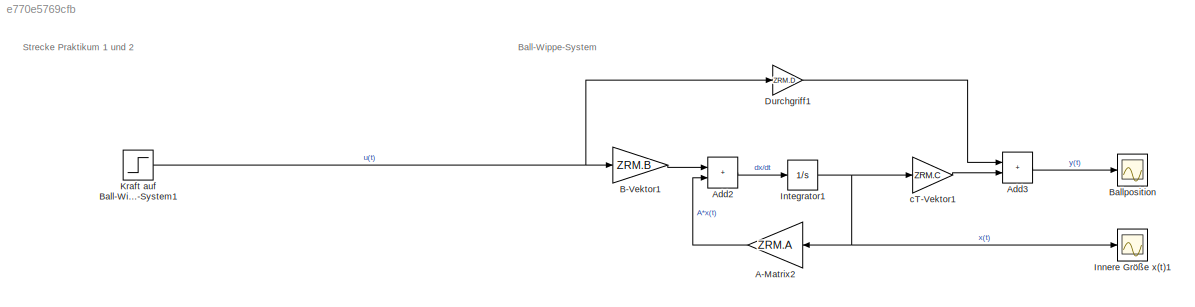
MODEL slx_e770e5769cfb
KIND model
CONFIG AbsTol = auto
CONFIG EnableMultiTasking = off
CONFIG FixedStep = auto
CONFIG MaxStep = auto
CONFIG MinStep = auto
CONFIG RelTol = 1e-3
CONFIG SampleTimeConstraint = Unconstrained
CONFIG SolverName = VariableStepAuto
CONFIG StartTime = 0.0
CONFIG StopTime = 10.0
BLOCK [Gain] A-Matrix2
  Gain = ZRM.A
  Multiplication = Matrix(K*u) (u vector)
  NameLocation = top
BLOCK [Sum] Add2
  IconShape = rectangular
  Ports = [2, 1]
BLOCK [Sum] Add3
  IconShape = rectangular
  Ports = [2, 1]
BLOCK [Gain] B-Vektor1
  Gain = ZRM.B
  Multiplication = Matrix(K*u) (u vector)
BLOCK [Scope] Ballposition
  Floating = off
  NumInputPorts = 1
  Ports = [1]
  ScopeSpecificationString = Simulink.scopes.TimeScopeBlockCfg('CurrentConfiguration', extmgr.ConfigurationSet(extmgr.Configuration('Core','General UI',true),extmgr.Configuration('Core','Source UI',true),extmgr.Configuration('Sources','WiredSimulink',true,'DataLoggingVariableName','ScopeData1'),extmgr.Configuration('Visuals','Time Domain',true,'SerializedDisplays',{struct('MinYLimReal','-403437080.8631','MaxYLimReal','3630933...<+1639ch>
BLOCK [Gain] Durchgriff1
  Gain = ZRM.D
  Multiplication = Matrix(K*u)
BLOCK [Scope] Innere Größe x(t)1
  Floating = off
  NumInputPorts = 1
  Ports = [1]
  ScopeSpecificationString = Simulink.scopes.TimeScopeBlockCfg('CurrentConfiguration', extmgr.ConfigurationSet(extmgr.Configuration('Core','General UI',true),extmgr.Configuration('Core','Source UI',true),extmgr.Configuration('Sources','WiredSimulink',true),extmgr.Configuration('Visuals','Time Domain',true,'SerializedDisplays',{struct('MinYLimReal','-1597467081.52938','MaxYLimReal','14377203733.764','YLabelReal','','MinYLimMag...<+1669ch>
BLOCK [Integrator] Integrator1
  InitialCondition = x0
  Ports = [1, 1]
BLOCK [Step] Kraft auf Ball-Wippe-System1
  After = u0
  SampleTime = 0
BLOCK [Gain] cT-Vektor1
  Gain = ZRM.C
  Multiplication = Matrix(K*u) (u vector)
ANNOTATION (root): Ball-Wippe-System
ANNOTATION (root): Strecke Praktikum 1 und 2
LINE A-Matrix2:1 -> Add2:2
LINE Add2:1 -> Integrator1:1
LINE Add3:1 -> Ballposition:1
LINE B-Vektor1:1 -> Add2:1
LINE Durchgriff1:1 -> Add3:1
NET Integrator1:1 -> A-Matrix2:1, Innere Größe x(t)1:1, cT-Vektor1:1
NET Kraft auf Ball-Wippe-System1:1 -> B-Vektor1:1, Durchgriff1:1
LINE cT-Vektor1:1 -> Add3:2
note: NET lines group one-source signal fan-out (src -> all destinations, sorted); 1:1 wires keep LINE
